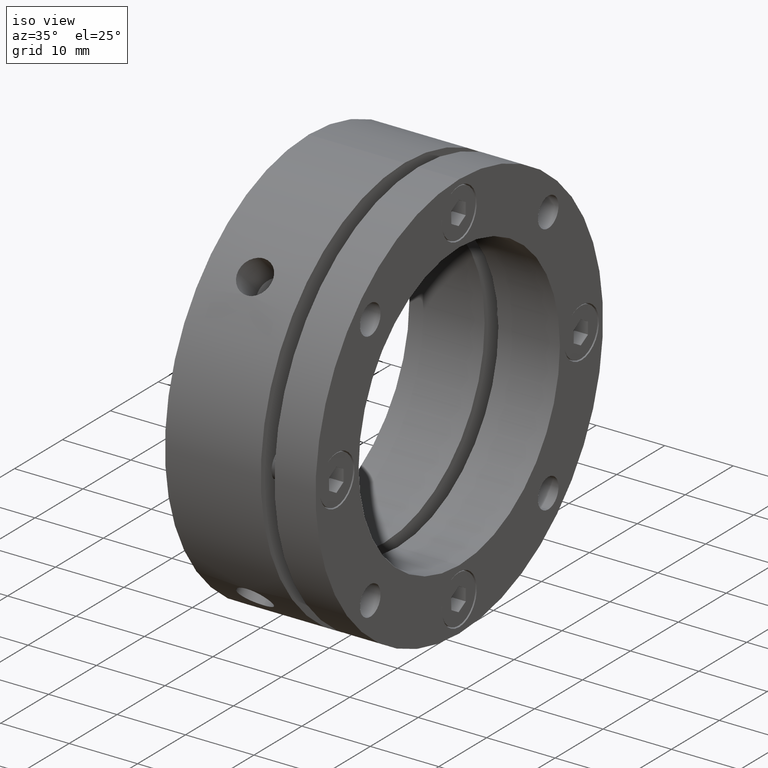
[diagram: clean part render]
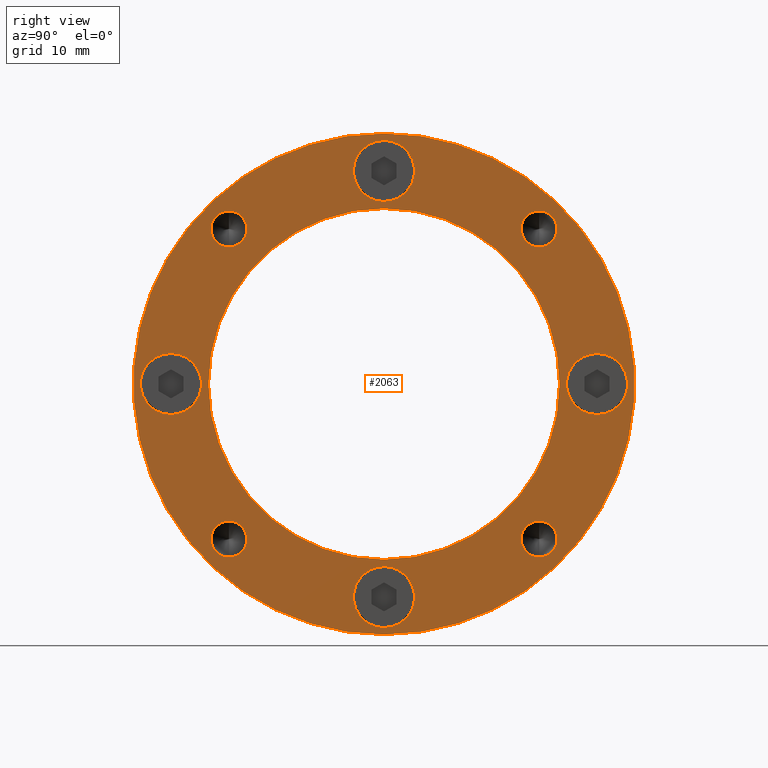
[diagram: tour spotlight — one face highlighted and labeled with its STEP entity id]
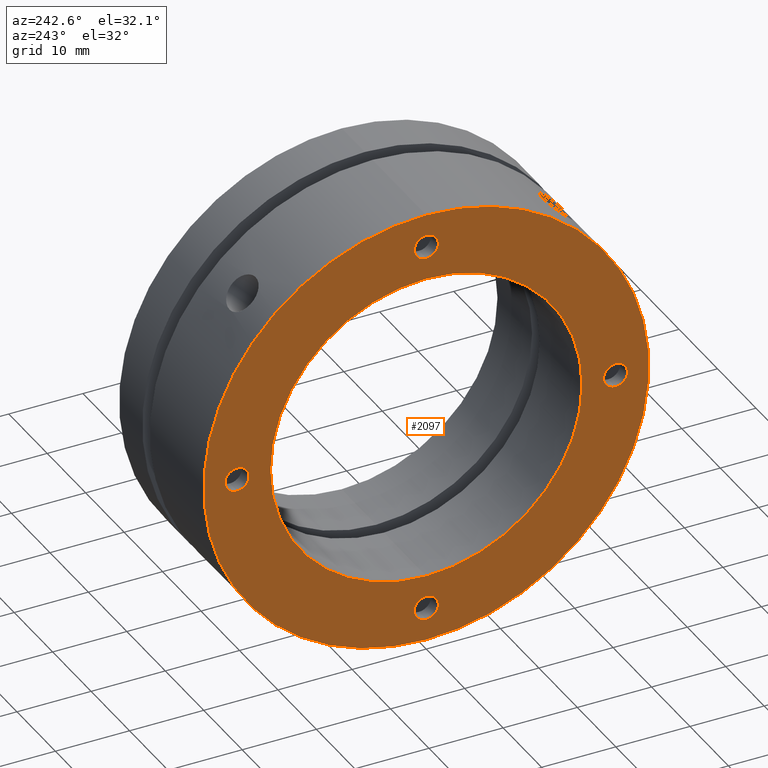
[diagram: tour spotlight — one face highlighted and labeled with its STEP entity id]
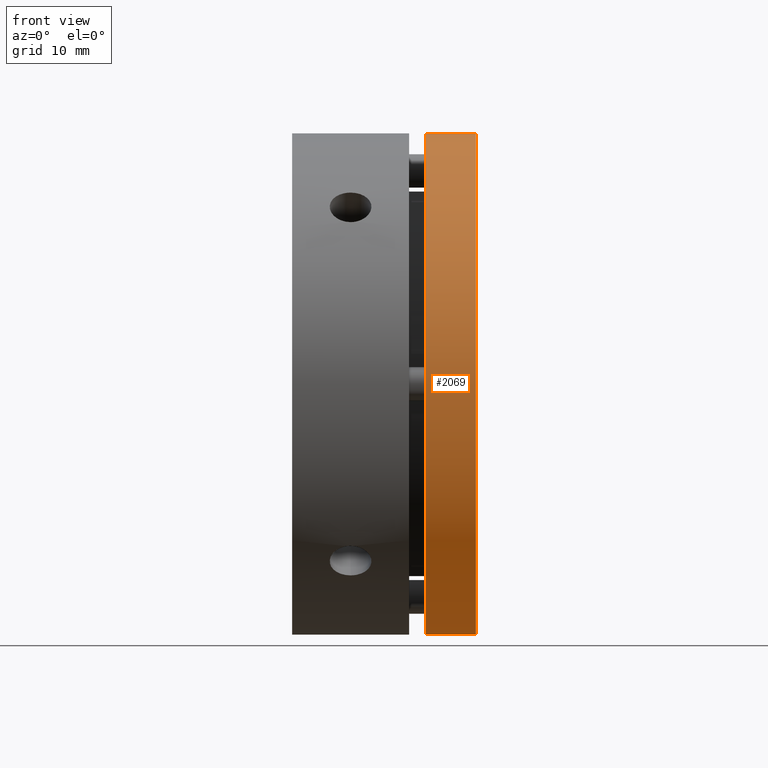
[diagram: tour spotlight — one face highlighted and labeled with its STEP entity id]
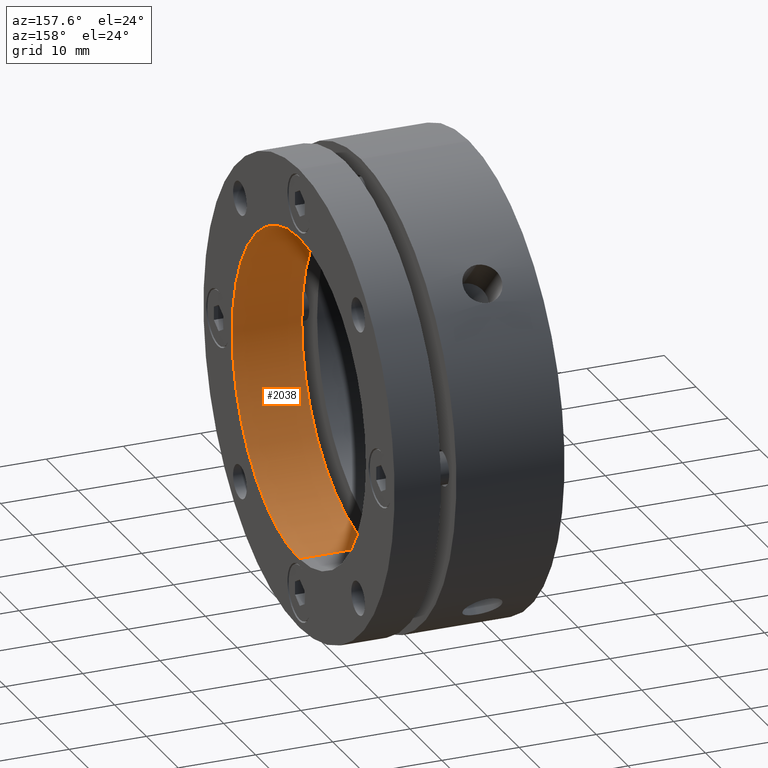
[diagram: tour spotlight — one face highlighted and labeled with its STEP entity id]
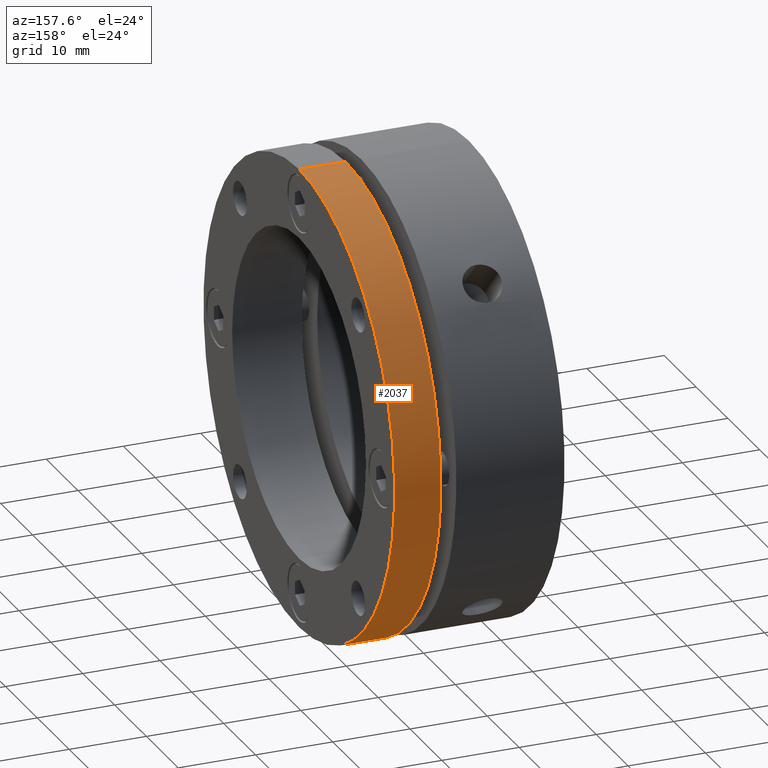
[diagram: tour spotlight — one face highlighted and labeled with its STEP entity id]
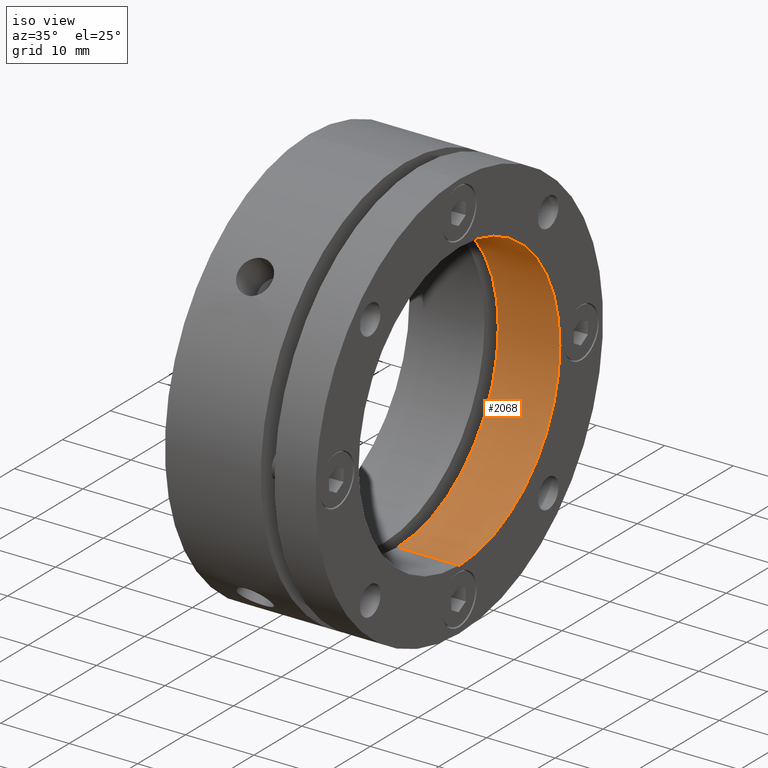
[diagram: tour spotlight — one face highlighted and labeled with its STEP entity id]
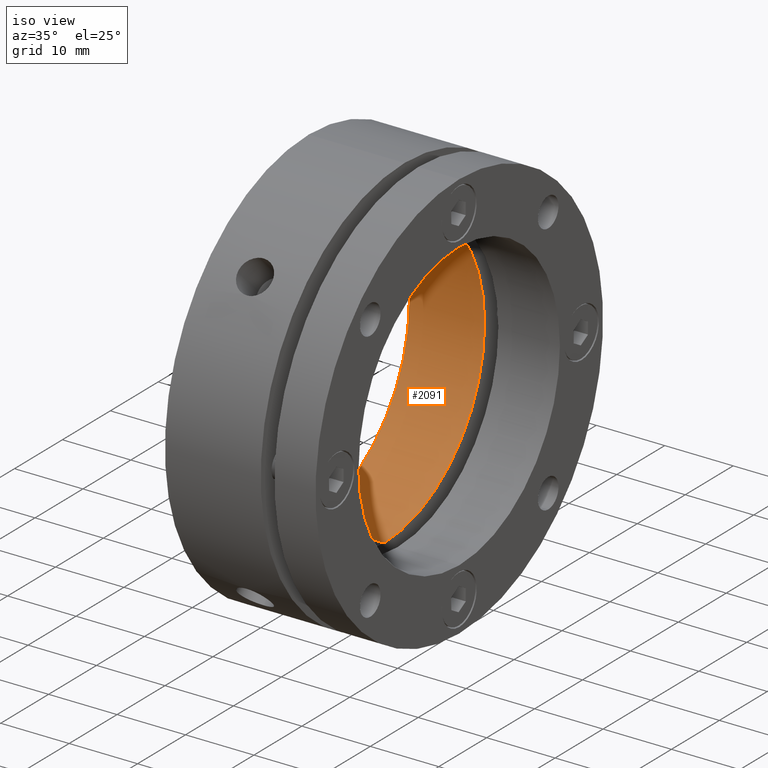
[diagram: tour spotlight — one face highlighted and labeled with its STEP entity id]
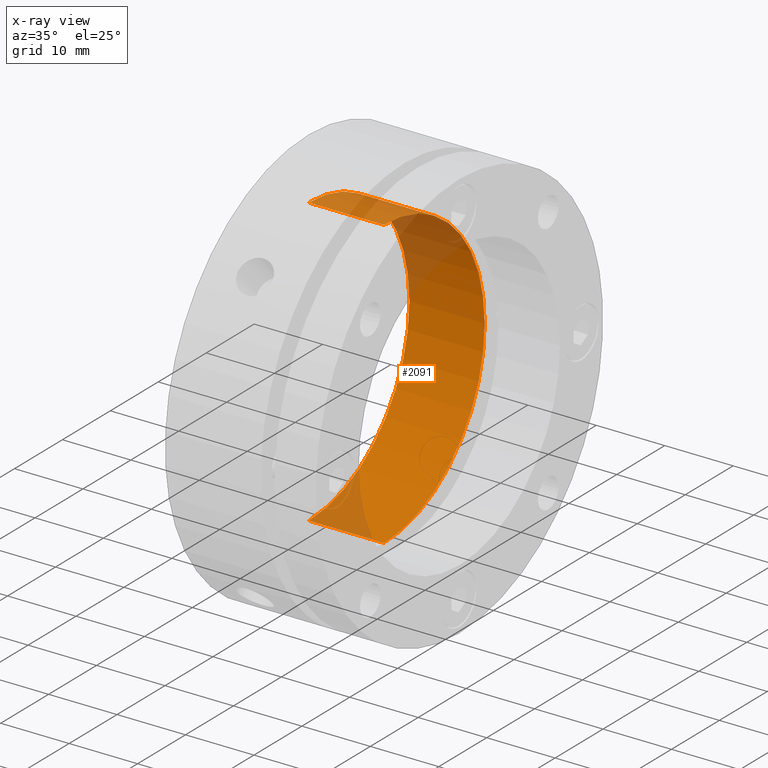
[diagram: x-ray of the same camera — body ghosted, this tour face saturated]
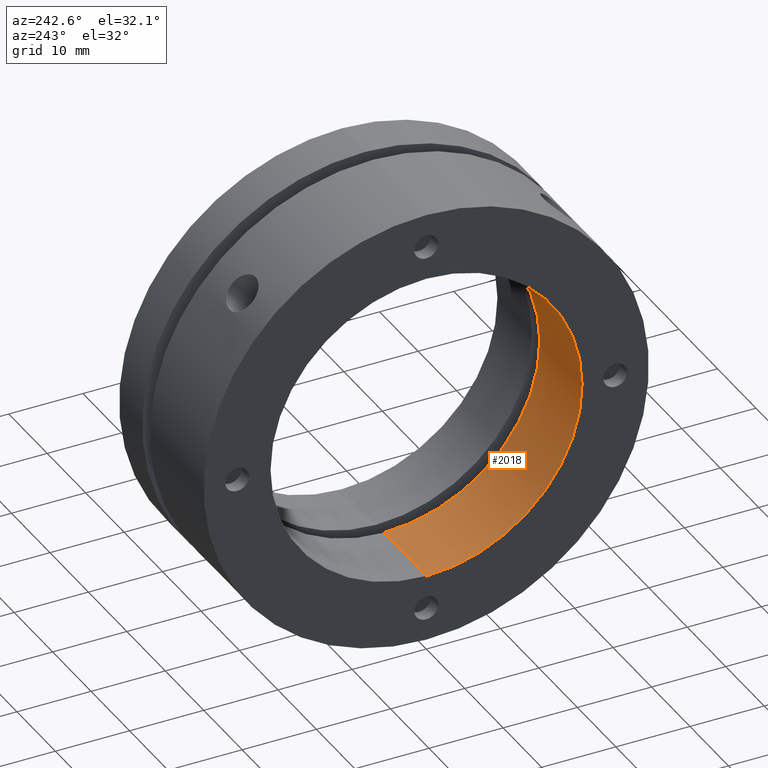
[diagram: tour spotlight — one face highlighted and labeled with its STEP entity id]
A machine part: a face-by-face anatomy tour. The part has 142 B-rep faces; the first image is the clean iso view, then the 8 largest visible faces are spotlighted one at a time (largest first), each with its STEP entity span.

Face 1 — right view, entity #2063. In plain terms, the highlighted planar face has unit normal (1, 0, 0).
Definition (entity closure, byte-faithful):
#32 = AXIS2_PLACEMENT_3D ( 'NONE', #3362, #3358, #3364 ) ;
#458 = CARTESIAN_POINT ( 'NONE',  ( 21.99999999999999300, -18.56155300614687700, 18.56155300614687700 ) ) ;
#459 = DIRECTION ( 'NONE',  ( -1.000000000000000000, -0.0000000000000000000, -0.0000000000000000000 ) ) ;
#460 = DIRECTION ( 'NONE',  ( 0.0000000000000000000, 0.0000000000000000000, -1.000000000000000000 ) ) ;
#471 = CARTESIAN_POINT ( 'NONE',  ( 21.99999999999999300, 18.56155300614687300, -18.56155300614688400 ) ) ;
#472 = DIRECTION ( 'NONE',  ( -1.000000000000000000, -0.0000000000000000000, -0.0000000000000000000 ) ) ;
#473 = DIRECTION ( 'NONE',  ( 0.0000000000000000000, 0.0000000000000000000, -1.000000000000000000 ) ) ;
#604 = CARTESIAN_POINT ( 'NONE',  ( 21.99999999999999300, 0.0000000000000000000, 0.0000000000000000000 ) ) ;
#605 = DIRECTION ( 'NONE',  ( -1.000000000000000000, -0.0000000000000000000, -0.0000000000000000000 ) ) ;
#606 = DIRECTION ( 'NONE',  ( 0.0000000000000000000, 0.0000000000000000000, -1.000000000000000000 ) ) ;
#619 = CARTESIAN_POINT ( 'NONE',  ( 21.99999999999999300, 18.56155300614688400, 18.56155300614687300 ) ) ;
#620 = DIRECTION ( 'NONE',  ( -1.000000000000000000, -0.0000000000000000000, -0.0000000000000000000 ) ) ;
#621 = DIRECTION ( 'NONE',  ( 0.0000000000000000000, 0.0000000000000000000, -1.000000000000000000 ) ) ;
#625 = CARTESIAN_POINT ( 'NONE',  ( 21.99999999999999300, 25.50000000000001100, -4.684274000000000000E-015 ) ) ;
#626 = DIRECTION ( 'NONE',  ( -1.000000000000000000, -0.0000000000000000000, -0.0000000000000000000 ) ) ;
#627 = DIRECTION ( 'NONE',  ( 0.0000000000000000000, 0.0000000000000000000, -1.000000000000000000 ) ) ;
#628 = CARTESIAN_POINT ( 'NONE',  ( 21.99999999999999300, 0.0000000000000000000, 0.0000000000000000000 ) ) ;
#629 = DIRECTION ( 'NONE',  ( -1.000000000000000000, -0.0000000000000000000, -0.0000000000000000000 ) ) ;
#630 = DIRECTION ( 'NONE',  ( 0.0000000000000000000, 0.0000000000000000000, -1.000000000000000000 ) ) ;
#634 = CARTESIAN_POINT ( 'NONE',  ( 21.99999999999999300, 18.56155300614687300, -18.56155300614688400 ) ) ;
#635 = DIRECTION ( 'NONE',  ( -1.000000000000000000, -0.0000000000000000000, -0.0000000000000000000 ) ) ;
#636 = DIRECTION ( 'NONE',  ( 0.0000000000000000000, 0.0000000000000000000, -1.000000000000000000 ) ) ;
#639 = CARTESIAN_POINT ( 'NONE',  ( 21.99999999999999300, 25.50000000000001100, -4.684274000000000000E-015 ) ) ;
#640 = DIRECTION ( 'NONE',  ( -1.000000000000000000, -0.0000000000000000000, -0.0000000000000000000 ) ) ;
#641 = DIRECTION ( 'NONE',  ( 0.0000000000000000000, 0.0000000000000000000, -1.000000000000000000 ) ) ;
#643 = CARTESIAN_POINT ( 'NONE',  ( 21.99999999999999300, 18.56155300614688400, 18.56155300614687300 ) ) ;
#644 = DIRECTION ( 'NONE',  ( -1.000000000000000000, -0.0000000000000000000, -0.0000000000000000000 ) ) ;
#645 = DIRECTION ( 'NONE',  ( 0.0000000000000000000, 0.0000000000000000000, -1.000000000000000000 ) ) ;
#647 = CARTESIAN_POINT ( 'NONE',  ( 21.99999999999999300, -3.122849000000000000E-015, -25.50000000000001100 ) ) ;
#648 = DIRECTION ( 'NONE',  ( -1.000000000000000000, -0.0000000000000000000, -0.0000000000000000000 ) ) ;
#649 = DIRECTION ( 'NONE',  ( 0.0000000000000000000, 0.0000000000000000000, -1.000000000000000000 ) ) ;
#652 = CARTESIAN_POINT ( 'NONE',  ( 21.99999999999999300, -25.50000000000001100, 1.561424999999999900E-015 ) ) ;
#653 = DIRECTION ( 'NONE',  ( -1.000000000000000000, -0.0000000000000000000, -0.0000000000000000000 ) ) ;
#654 = DIRECTION ( 'NONE',  ( 0.0000000000000000000, 0.0000000000000000000, -1.000000000000000000 ) ) ;
#672 = CARTESIAN_POINT ( 'NONE',  ( 21.99999999999999300, 0.0000000000000000000, 0.0000000000000000000 ) ) ;
#673 = DIRECTION ( 'NONE',  ( -1.000000000000000000, -0.0000000000000000000, -0.0000000000000000000 ) ) ;
#674 = DIRECTION ( 'NONE',  ( 0.0000000000000000000, 0.0000000000000000000, -1.000000000000000000 ) ) ;
#749 = CARTESIAN_POINT ( 'NONE',  ( 21.99999999999999300, 0.0000000000000000000, 0.0000000000000000000 ) ) ;
#750 = DIRECTION ( 'NONE',  ( -1.000000000000000000, -0.0000000000000000000, -0.0000000000000000000 ) ) ;
#751 = DIRECTION ( 'NONE',  ( 0.0000000000000000000, 0.0000000000000000000, -1.000000000000000000 ) ) ;
#761 = CARTESIAN_POINT ( 'NONE',  ( 21.99999999999999300, 0.0000000000000000000, 25.50000000000001100 ) ) ;
#762 = DIRECTION ( 'NONE',  ( -1.000000000000000000, -0.0000000000000000000, -0.0000000000000000000 ) ) ;
#763 = DIRECTION ( 'NONE',  ( 0.0000000000000000000, 0.0000000000000000000, -1.000000000000000000 ) ) ;
#921 = EDGE_CURVE ( 'NONE', #1207, #1208, #1984, .T. ) ;
#922 = EDGE_CURVE ( 'NONE', #1203, #1204, #1982, .T. ) ;
#925 = EDGE_CURVE ( 'NONE', #1198, #1200, #1980, .T. ) ;
#935 = EDGE_CURVE ( 'NONE', #1190, #1191, #1966, .T. ) ;
#936 = EDGE_CURVE ( 'NONE', #1187, #1186, #1964, .T. ) ;
#939 = EDGE_CURVE ( 'NONE', #1186, #1187, #1961, .T. ) ;
#1079 = EDGE_LOOP ( 'NONE', ( #1488, #1479 ) ) ;
#1080 = EDGE_LOOP ( 'NONE', ( #1455, #1611 ) ) ;
#1081 = EDGE_LOOP ( 'NONE', ( #1402, #1466 ) ) ;
#1082 = EDGE_LOOP ( 'NONE', ( #1366, #1608 ) ) ;
#1083 = EDGE_LOOP ( 'NONE', ( #1444, #1606 ) ) ;
#1084 = EDGE_LOOP ( 'NONE', ( #1372, #1368 ) ) ;
#1085 = EDGE_LOOP ( 'NONE', ( #1371, #1607 ) ) ;
#1086 = EDGE_LOOP ( 'NONE', ( #1471, #1374 ) ) ;
#1096 = EDGE_LOOP ( 'NONE', ( #1367, #1451 ) ) ;
#1148 = EDGE_LOOP ( 'NONE', ( #1441, #1618 ) ) ;
#1178 = VERTEX_POINT ( 'NONE', #2562 ) ;
#1179 = VERTEX_POINT ( 'NONE', #2563 ) ;
#1182 = VERTEX_POINT ( 'NONE', #2567 ) ;
#1183 = VERTEX_POINT ( 'NONE', #2568 ) ;
#1186 = VERTEX_POINT ( 'NONE', #2572 ) ;
#1187 = VERTEX_POINT ( 'NONE', #2573 ) ;
#1190 = VERTEX_POINT ( 'NONE', #2579 ) ;
#1191 = VERTEX_POINT ( 'NONE', #2580 ) ;
#1194 = VERTEX_POINT ( 'NONE', #2586 ) ;
#1195 = VERTEX_POINT ( 'NONE', #2587 ) ;
#1198 = VERTEX_POINT ( 'NONE', #2593 ) ;
#1200 = VERTEX_POINT ( 'NONE', #2596 ) ;
#1203 = VERTEX_POINT ( 'NONE', #2601 ) ;
#1204 = VERTEX_POINT ( 'NONE', #2603 ) ;
#1207 = VERTEX_POINT ( 'NONE', #2608 ) ;
#1208 = VERTEX_POINT ( 'NONE', #2610 ) ;
#1211 = VERTEX_POINT ( 'NONE', #2615 ) ;
#1212 = VERTEX_POINT ( 'NONE', #2617 ) ;
#1214 = VERTEX_POINT ( 'NONE', #2621 ) ;
#1216 = VERTEX_POINT ( 'NONE', #2624 ) ;
#1304 = AXIS2_PLACEMENT_3D ( 'NONE', #458, #459, #460 ) ;
#1314 = AXIS2_PLACEMENT_3D ( 'NONE', #471, #472, #473 ) ;
#1366 = ORIENTED_EDGE ( 'NONE', *, *, #936, .T. ) ;
#1367 = ORIENTED_EDGE ( 'NONE', *, *, #2521, .T. ) ;
#1368 = ORIENTED_EDGE ( 'NONE', *, *, #925, .T. ) ;
#1371 = ORIENTED_EDGE ( 'NONE', *, *, #2623, .T. ) ;
#1372 = ORIENTED_EDGE ( 'NONE', *, *, #2630, .T. ) ;
#1374 = ORIENTED_EDGE ( 'NONE', *, *, #921, .T. ) ;
#1402 = ORIENTED_EDGE ( 'NONE', *, *, #2532, .T. ) ;
#1441 = ORIENTED_EDGE ( 'NONE', *, *, #3507, .T. ) ;
#1444 = ORIENTED_EDGE ( 'NONE', *, *, #2634, .T. ) ;
#1451 = ORIENTED_EDGE ( 'NONE', *, *, #935, .T. ) ;
#1455 = ORIENTED_EDGE ( 'NONE', *, *, #2625, .T. ) ;
#1466 = ORIENTED_EDGE ( 'NONE', *, *, #2620, .T. ) ;
#1471 = ORIENTED_EDGE ( 'NONE', *, *, #3513, .T. ) ;
#1479 = ORIENTED_EDGE ( 'NONE', *, *, #3477, .F. ) ;
#1488 = ORIENTED_EDGE ( 'NONE', *, *, #2597, .F. ) ;
#1606 = ORIENTED_EDGE ( 'NONE', *, *, #922, .T. ) ;
#1607 = ORIENTED_EDGE ( 'NONE', *, *, #2613, .T. ) ;
#1608 = ORIENTED_EDGE ( 'NONE', *, *, #939, .T. ) ;
#1611 = ORIENTED_EDGE ( 'NONE', *, *, #2609, .T. ) ;
#1618 = ORIENTED_EDGE ( 'NONE', *, *, #2616, .T. ) ;
#1961 = CIRCLE ( 'NONE', #3458, 2.149999999999999000 ) ;
#1964 = CIRCLE ( 'NONE', #3460, 2.149999999999999000 ) ;
#1966 = CIRCLE ( 'NONE', #3461, 2.149999999999999000 ) ;
#1980 = CIRCLE ( 'NONE', #3467, 3.650000000000000400 ) ;
#1982 = CIRCLE ( 'NONE', #3470, 3.649999999999999900 ) ;
#1984 = CIRCLE ( 'NONE', #3471, 3.650000000000000400 ) ;
#2063 = ADVANCED_FACE ( 'NONE', ( #2171, #2179, #2175, #2173, #2177, #2180, #2181, #2182, #2183, #2184 ), #3360, .T. ) ;
#2171 = FACE_BOUND ( 'NONE', #1148, .T. ) ;
#2173 = FACE_BOUND ( 'NONE', #1084, .T. ) ;
#2175 = FACE_BOUND ( 'NONE', #1083, .T. ) ;
#2177 = FACE_BOUND ( 'NONE', #1085, .T. ) ;
#2179 = FACE_BOUND ( 'NONE', #1086, .T. ) ;
#2180 = FACE_BOUND ( 'NONE', #1096, .T. ) ;
#2181 = FACE_BOUND ( 'NONE', #1082, .T. ) ;
#2182 = FACE_BOUND ( 'NONE', #1081, .T. ) ;
#2183 = FACE_BOUND ( 'NONE', #1080, .T. ) ;
#2184 = FACE_OUTER_BOUND ( 'NONE', #1079, .T. ) ;
#2292 = CIRCLE ( 'NONE', #1304, 2.149999999999999000 ) ;
#2300 = CIRCLE ( 'NONE', #1314, 2.149999999999999000 ) ;
#2325 = CIRCLE ( 'NONE', #2649, 30.00000000000000000 ) ;
#2328 = CIRCLE ( 'NONE', #2661, 2.149999999999999000 ) ;
#2331 = CIRCLE ( 'NONE', #2668, 21.00000000000000000 ) ;
#2332 = CIRCLE ( 'NONE', #2666, 3.649999999999999900 ) ;
#2334 = CIRCLE ( 'NONE', #2673, 2.149999999999999000 ) ;
#2335 = CIRCLE ( 'NONE', #2680, 3.650000000000000400 ) ;
#2336 = CIRCLE ( 'NONE', #2675, 3.649999999999999900 ) ;
#2337 = CIRCLE ( 'NONE', #2677, 2.149999999999999000 ) ;
#2339 = CIRCLE ( 'NONE', #2682, 3.649999999999999900 ) ;
#2354 = CIRCLE ( 'NONE', #2691, 30.00000000000000000 ) ;
#2399 = CIRCLE ( 'NONE', #2726, 21.00000000000000000 ) ;
#2408 = CIRCLE ( 'NONE', #2731, 3.650000000000000400 ) ;
#2427 = CARTESIAN_POINT ( 'NONE',  ( 21.99999999999999300, 0.0000000000000000000, 25.50000000000001100 ) ) ;
#2428 = DIRECTION ( 'NONE',  ( -1.000000000000000000, -0.0000000000000000000, -0.0000000000000000000 ) ) ;
#2429 = DIRECTION ( 'NONE',  ( 0.0000000000000000000, 0.0000000000000000000, -1.000000000000000000 ) ) ;
#2430 = CARTESIAN_POINT ( 'NONE',  ( 21.99999999999999300, -25.50000000000001100, 1.561424999999999900E-015 ) ) ;
#2431 = DIRECTION ( 'NONE',  ( -1.000000000000000000, -0.0000000000000000000, -0.0000000000000000000 ) ) ;
#2432 = DIRECTION ( 'NONE',  ( 0.0000000000000000000, 0.0000000000000000000, -1.000000000000000000 ) ) ;
#2440 = CARTESIAN_POINT ( 'NONE',  ( 21.99999999999999300, -3.122849000000000000E-015, -25.50000000000001100 ) ) ;
#2441 = DIRECTION ( 'NONE',  ( -1.000000000000000000, -0.0000000000000000000, -0.0000000000000000000 ) ) ;
#2442 = DIRECTION ( 'NONE',  ( 0.0000000000000000000, 0.0000000000000000000, -1.000000000000000000 ) ) ;
#2466 = CARTESIAN_POINT ( 'NONE',  ( 21.99999999999999300, -18.56155300614687700, 18.56155300614687700 ) ) ;
#2467 = DIRECTION ( 'NONE',  ( -1.000000000000000000, -0.0000000000000000000, -0.0000000000000000000 ) ) ;
#2468 = DIRECTION ( 'NONE',  ( 0.0000000000000000000, 0.0000000000000000000, -1.000000000000000000 ) ) ;
#2469 = CARTESIAN_POINT ( 'NONE',  ( 21.99999999999999300, -18.56155300614688000, -18.56155300614687300 ) ) ;
#2470 = DIRECTION ( 'NONE',  ( -1.000000000000000000, -0.0000000000000000000, -0.0000000000000000000 ) ) ;
#2471 = DIRECTION ( 'NONE',  ( 0.0000000000000000000, 0.0000000000000000000, -1.000000000000000000 ) ) ;
#2478 = CARTESIAN_POINT ( 'NONE',  ( 21.99999999999999300, -18.56155300614688000, -18.56155300614687300 ) ) ;
#2479 = DIRECTION ( 'NONE',  ( -1.000000000000000000, -0.0000000000000000000, -0.0000000000000000000 ) ) ;
#2480 = DIRECTION ( 'NONE',  ( 0.0000000000000000000, 0.0000000000000000000, -1.000000000000000000 ) ) ;
#2521 = EDGE_CURVE ( 'NONE', #1191, #1190, #2292, .T. ) ;
#2532 = EDGE_CURVE ( 'NONE', #1183, #1182, #2300, .T. ) ;
#2562 = CARTESIAN_POINT ( 'NONE',  ( 21.99999999999999300, 18.56155300614688400, 20.71155300614687200 ) ) ;
#2563 = CARTESIAN_POINT ( 'NONE',  ( 21.99999999999999300, 18.56155300614688400, 16.41155300614687500 ) ) ;
#2567 = CARTESIAN_POINT ( 'NONE',  ( 21.99999999999999300, 18.56155300614687300, -16.41155300614688500 ) ) ;
#2568 = CARTESIAN_POINT ( 'NONE',  ( 21.99999999999999300, 18.56155300614687300, -20.71155300614688200 ) ) ;
#2572 = CARTESIAN_POINT ( 'NONE',  ( 21.99999999999999300, -18.56155300614688000, -16.41155300614687500 ) ) ;
#2573 = CARTESIAN_POINT ( 'NONE',  ( 21.99999999999999300, -18.56155300614688000, -20.71155300614687200 ) ) ;
#2579 = CARTESIAN_POINT ( 'NONE',  ( 21.99999999999999300, -18.56155300614687700, 20.71155300614687500 ) ) ;
#2580 = CARTESIAN_POINT ( 'NONE',  ( 21.99999999999999300, -18.56155300614687700, 16.41155300614687800 ) ) ;
#2586 = CARTESIAN_POINT ( 'NONE',  ( 21.99999999999999300, 25.50000000000001100, 3.649999999999995500 ) ) ;
#2587 = CARTESIAN_POINT ( 'NONE',  ( 21.99999999999999300, 25.50000000000001100, -3.650000000000004800 ) ) ;
#2593 = CARTESIAN_POINT ( 'NONE',  ( 21.99999999999999300, -2.675852918311216200E-015, -21.85000000000001200 ) ) ;
#2596 = CARTESIAN_POINT ( 'NONE',  ( 21.99999999999999300, -3.122849000000000000E-015, -29.15000000000001300 ) ) ;
#2597 = EDGE_CURVE ( 'NONE', #1214, #1216, #2325, .T. ) ;
#2601 = CARTESIAN_POINT ( 'NONE',  ( 21.99999999999999300, -25.50000000000001100, 3.650000000000001700 ) ) ;
#2603 = CARTESIAN_POINT ( 'NONE',  ( 21.99999999999999300, -25.50000000000001100, -3.649999999999998100 ) ) ;
#2609 = EDGE_CURVE ( 'NONE', #1178, #1179, #2328, .T. ) ;
#2608 = CARTESIAN_POINT ( 'NONE',  ( 21.99999999999999300, 4.469960816887838400E-016, 29.15000000000001300 ) ) ;
#2610 = CARTESIAN_POINT ( 'NONE',  ( 21.99999999999999300, 0.0000000000000000000, 21.85000000000001200 ) ) ;
#2613 = EDGE_CURVE ( 'NONE', #1194, #1195, #2332, .T. ) ;
#2616 = EDGE_CURVE ( 'NONE', #1211, #1212, #2331, .T. ) ;
#2615 = CARTESIAN_POINT ( 'NONE',  ( 21.99999999999999300, 2.571758278209441700E-015, 21.00000000000000000 ) ) ;
#2617 = CARTESIAN_POINT ( 'NONE',  ( 21.99999999999999300, 0.0000000000000000000, -21.00000000000000000 ) ) ;
#2620 = EDGE_CURVE ( 'NONE', #1182, #1183, #2334, .T. ) ;
#2621 = CARTESIAN_POINT ( 'NONE',  ( 21.99999999999999300, 0.0000000000000000000, -30.00000000000000000 ) ) ;
#2623 = EDGE_CURVE ( 'NONE', #1195, #1194, #2336, .T. ) ;
#2624 = CARTESIAN_POINT ( 'NONE',  ( 21.99999999999999300, 3.673940397442059200E-015, 30.00000000000000000 ) ) ;
#2625 = EDGE_CURVE ( 'NONE', #1179, #1178, #2337, .T. ) ;
#2630 = EDGE_CURVE ( 'NONE', #1200, #1198, #2335, .T. ) ;
#2634 = EDGE_CURVE ( 'NONE', #1204, #1203, #2339, .T. ) ;
#2649 = AXIS2_PLACEMENT_3D ( 'NONE', #604, #605, #606 ) ;
#2661 = AXIS2_PLACEMENT_3D ( 'NONE', #619, #620, #621 ) ;
#2666 = AXIS2_PLACEMENT_3D ( 'NONE', #625, #626, #627 ) ;
#2668 = AXIS2_PLACEMENT_3D ( 'NONE', #628, #629, #630 ) ;
#2673 = AXIS2_PLACEMENT_3D ( 'NONE', #634, #635, #636 ) ;
#2675 = AXIS2_PLACEMENT_3D ( 'NONE', #639, #640, #641 ) ;
#2677 = AXIS2_PLACEMENT_3D ( 'NONE', #643, #644, #645 ) ;
#2680 = AXIS2_PLACEMENT_3D ( 'NONE', #647, #648, #649 ) ;
#2682 = AXIS2_PLACEMENT_3D ( 'NONE', #652, #653, #654 ) ;
#2691 = AXIS2_PLACEMENT_3D ( 'NONE', #672, #673, #674 ) ;
#2726 = AXIS2_PLACEMENT_3D ( 'NONE', #749, #750, #751 ) ;
#2731 = AXIS2_PLACEMENT_3D ( 'NONE', #761, #762, #763 ) ;
#3358 = DIRECTION ( 'NONE',  ( 1.000000000000000000, -0.0000000000000000000, 0.0000000000000000000 ) ) ;
#3360 = PLANE ( 'NONE',  #32 ) ;
#3362 = CARTESIAN_POINT ( 'NONE',  ( 21.99999999999999300, 25.50000000000000400, 0.0000000000000000000 ) ) ;
#3364 = DIRECTION ( 'NONE',  ( 0.0000000000000000000, 0.0000000000000000000, -1.000000000000000000 ) ) ;
#3458 = AXIS2_PLACEMENT_3D ( 'NONE', #2478, #2479, #2480 ) ;
#3460 = AXIS2_PLACEMENT_3D ( 'NONE', #2469, #2470, #2471 ) ;
#3461 = AXIS2_PLACEMENT_3D ( 'NONE', #2466, #2467, #2468 ) ;
#3467 = AXIS2_PLACEMENT_3D ( 'NONE', #2440, #2441, #2442 ) ;
#3470 = AXIS2_PLACEMENT_3D ( 'NONE', #2430, #2431, #2432 ) ;
#3471 = AXIS2_PLACEMENT_3D ( 'NONE', #2427, #2428, #2429 ) ;
#3477 = EDGE_CURVE ( 'NONE', #1216, #1214, #2354, .T. ) ;
#3507 = EDGE_CURVE ( 'NONE', #1212, #1211, #2399, .T. ) ;
#3513 = EDGE_CURVE ( 'NONE', #1208, #1207, #2408, .T. ) ;

Face 2 — auxiliary view, entity #2097. In plain terms, the highlighted planar face has unit normal (-1, 0, 0).
Definition (entity closure, byte-faithful):
#255 = CIRCLE ( 'NONE', #3424, 1.621000000000000900 ) ;
#295 = CIRCLE ( 'NONE', #3435, 21.00000000000000000 ) ;
#431 = DIRECTION ( 'NONE',  ( -1.000000000000000000, 0.0000000000000000000, 0.0000000000000000000 ) ) ;
#433 = PLANE ( 'NONE',  #1309 ) ;
#435 = CARTESIAN_POINT ( 'NONE',  ( -7.208764000000000100E-015, 25.50000000000000400, 0.0000000000000000000 ) ) ;
#436 = DIRECTION ( 'NONE',  ( 0.0000000000000000000, 0.0000000000000000000, 1.000000000000000000 ) ) ;
#518 = CARTESIAN_POINT ( 'NONE',  ( -6.938893903907228400E-015, 25.50000000000001100, -4.684274000000000000E-015 ) ) ;
#519 = DIRECTION ( 'NONE',  ( 1.000000000000000000, -0.0000000000000000000, -0.0000000000000000000 ) ) ;
#520 = DIRECTION ( 'NONE',  ( 0.0000000000000000000, 0.0000000000000000000, 1.000000000000000000 ) ) ;
#521 = CARTESIAN_POINT ( 'NONE',  ( -6.938893903907228400E-015, -3.122849000000000000E-015, -25.50000000000001100 ) ) ;
#522 = DIRECTION ( 'NONE',  ( 1.000000000000000000, -0.0000000000000000000, -0.0000000000000000000 ) ) ;
#523 = DIRECTION ( 'NONE',  ( 0.0000000000000000000, 0.0000000000000000000, 1.000000000000000000 ) ) ;
#524 = CARTESIAN_POINT ( 'NONE',  ( -6.938893903907228400E-015, -25.50000000000001100, 1.561424999999999900E-015 ) ) ;
#525 = DIRECTION ( 'NONE',  ( 1.000000000000000000, -0.0000000000000000000, -0.0000000000000000000 ) ) ;
#526 = DIRECTION ( 'NONE',  ( 0.0000000000000000000, 0.0000000000000000000, 1.000000000000000000 ) ) ;
#527 = CARTESIAN_POINT ( 'NONE',  ( -6.938893903907228400E-015, 0.0000000000000000000, 25.50000000000001100 ) ) ;
#528 = DIRECTION ( 'NONE',  ( 1.000000000000000000, -0.0000000000000000000, -0.0000000000000000000 ) ) ;
#529 = DIRECTION ( 'NONE',  ( 0.0000000000000000000, 0.0000000000000000000, 1.000000000000000000 ) ) ;
#531 = CARTESIAN_POINT ( 'NONE',  ( -5.204170427930421300E-015, 0.0000000000000000000, 0.0000000000000000000 ) ) ;
#532 = DIRECTION ( 'NONE',  ( 1.000000000000000000, 0.0000000000000000000, 0.0000000000000000000 ) ) ;
#533 = DIRECTION ( 'NONE',  ( 0.0000000000000000000, 0.0000000000000000000, -1.000000000000000000 ) ) ;
#607 = CARTESIAN_POINT ( 'NONE',  ( -8.673617379884035500E-015, 0.0000000000000000000, 0.0000000000000000000 ) ) ;
#608 = DIRECTION ( 'NONE',  ( 1.000000000000000000, 0.0000000000000000000, 0.0000000000000000000 ) ) ;
#609 = DIRECTION ( 'NONE',  ( 0.0000000000000000000, 0.0000000000000000000, -1.000000000000000000 ) ) ;
#1039 = VERTEX_POINT ( 'NONE', #2524 ) ;
#1046 = EDGE_LOOP ( 'NONE', ( #1561, #1528 ) ) ;
#1115 = VERTEX_POINT ( 'NONE', #2536 ) ;
#1122 = VERTEX_POINT ( 'NONE', #2522 ) ;
#1130 = VERTEX_POINT ( 'NONE', #2542 ) ;
#1142 = VERTEX_POINT ( 'NONE', #2544 ) ;
#1143 = VERTEX_POINT ( 'NONE', #2546 ) ;
#1199 = VERTEX_POINT ( 'NONE', #2594 ) ;
#1215 = VERTEX_POINT ( 'NONE', #2622 ) ;
#1246 = VERTEX_POINT ( 'NONE', #2676 ) ;
#1266 = VERTEX_POINT ( 'NONE', #2711 ) ;
#1309 = AXIS2_PLACEMENT_3D ( 'NONE', #435, #431, #436 ) ;
#1329 = AXIS2_PLACEMENT_3D ( 'NONE', #518, #519, #520 ) ;
#1409 = ORIENTED_EDGE ( 'NONE', *, *, #1892, .T. ) ;
#1456 = VERTEX_POINT ( 'NONE', #2735 ) ;
#1460 = VERTEX_POINT ( 'NONE', #2734 ) ;
#1474 = ORIENTED_EDGE ( 'NONE', *, *, #2588, .T. ) ;
#1478 = ORIENTED_EDGE ( 'NONE', *, *, #2578, .T. ) ;
#1517 = ORIENTED_EDGE ( 'NONE', *, *, #2585, .T. ) ;
#1524 = ORIENTED_EDGE ( 'NONE', *, *, #1899, .T. ) ;
#1528 = ORIENTED_EDGE ( 'NONE', *, *, #2581, .T. ) ;
#1533 = ORIENTED_EDGE ( 'NONE', *, *, #1898, .F. ) ;
#1534 = ORIENTED_EDGE ( 'NONE', *, *, #2599, .F. ) ;
#1539 = ORIENTED_EDGE ( 'NONE', *, *, #1896, .T. ) ;
#1540 = ORIENTED_EDGE ( 'NONE', *, *, #2583, .T. ) ;
#1555 = ORIENTED_EDGE ( 'NONE', *, *, #1658, .T. ) ;
#1561 = ORIENTED_EDGE ( 'NONE', *, *, #1889, .T. ) ;
#1658 = EDGE_CURVE ( 'NONE', #1039, #1142, #295, .T. ) ;
#1889 = EDGE_CURVE ( 'NONE', #1115, #1122, #255, .T. ) ;
#1892 = EDGE_CURVE ( 'NONE', #1130, #1266, #3541, .T. ) ;
#1896 = EDGE_CURVE ( 'NONE', #1215, #1246, #3537, .T. ) ;
#1898 = EDGE_CURVE ( 'NONE', #1460, #1456, #3538, .T. ) ;
#1899 = EDGE_CURVE ( 'NONE', #1199, #1143, #3542, .T. ) ;
#1932 = EDGE_LOOP ( 'NONE', ( #1409, #1478 ) ) ;
#1933 = EDGE_LOOP ( 'NONE', ( #1533, #1534 ) ) ;
#1989 = EDGE_LOOP ( 'NONE', ( #1474, #1555 ) ) ;
#1990 = EDGE_LOOP ( 'NONE', ( #1539, #1540 ) ) ;
#1992 = EDGE_LOOP ( 'NONE', ( #1524, #1517 ) ) ;
#2097 = ADVANCED_FACE ( 'NONE', ( #2263, #2271, #2267, #2265, #2269, #2272 ), #433, .T. ) ;
#2263 = FACE_BOUND ( 'NONE', #1989, .T. ) ;
#2265 = FACE_BOUND ( 'NONE', #1046, .T. ) ;
#2267 = FACE_BOUND ( 'NONE', #1990, .T. ) ;
#2269 = FACE_BOUND ( 'NONE', #1932, .T. ) ;
#2271 = FACE_BOUND ( 'NONE', #1992, .T. ) ;
#2272 = FACE_OUTER_BOUND ( 'NONE', #1933, .T. ) ;
#2319 = CIRCLE ( 'NONE', #1329, 1.621000000000000000 ) ;
#2320 = CIRCLE ( 'NONE', #2638, 1.621000000000000900 ) ;
#2321 = CIRCLE ( 'NONE', #2640, 1.621000000000000000 ) ;
#2322 = CIRCLE ( 'NONE', #2642, 1.621000000000000900 ) ;
#2323 = CIRCLE ( 'NONE', #2645, 21.00000000000000000 ) ;
#2326 = CIRCLE ( 'NONE', #2652, 30.00000000000000000 ) ;
#2522 = CARTESIAN_POINT ( 'NONE',  ( -6.938893903907228400E-015, -2.924333753858213800E-015, -27.12100000000001300 ) ) ;
#2524 = CARTESIAN_POINT ( 'NONE',  ( -5.204170427930421300E-015, 2.571758278209441700E-015, 21.00000000000000000 ) ) ;
#2536 = CARTESIAN_POINT ( 'NONE',  ( -6.938893903907228400E-015, -3.122849000000000000E-015, -23.87900000000001200 ) ) ;
#2542 = CARTESIAN_POINT ( 'NONE',  ( -6.938893903907228400E-015, 25.50000000000001100, 1.620999999999995300 ) ) ;
#2544 = CARTESIAN_POINT ( 'NONE',  ( -5.204170427930421300E-015, 0.0000000000000000000, -21.00000000000000000 ) ) ;
#2546 = CARTESIAN_POINT ( 'NONE',  ( -6.938893903907228400E-015, 1.985152461417858200E-016, 23.87900000000001200 ) ) ;
#2578 = EDGE_CURVE ( 'NONE', #1266, #1130, #2319, .T. ) ;
#2581 = EDGE_CURVE ( 'NONE', #1122, #1115, #2320, .T. ) ;
#2583 = EDGE_CURVE ( 'NONE', #1246, #1215, #2321, .T. ) ;
#2585 = EDGE_CURVE ( 'NONE', #1143, #1199, #2322, .T. ) ;
#2588 = EDGE_CURVE ( 'NONE', #1142, #1039, #2323, .T. ) ;
#2594 = CARTESIAN_POINT ( 'NONE',  ( -6.938893903907228400E-015, 0.0000000000000000000, 27.12100000000001300 ) ) ;
#2599 = EDGE_CURVE ( 'NONE', #1456, #1460, #2326, .T. ) ;
#2622 = CARTESIAN_POINT ( 'NONE',  ( -6.938893903907228400E-015, -25.50000000000001100, 1.621000000000001600 ) ) ;
#2638 = AXIS2_PLACEMENT_3D ( 'NONE', #521, #522, #523 ) ;
#2640 = AXIS2_PLACEMENT_3D ( 'NONE', #524, #525, #526 ) ;
#2642 = AXIS2_PLACEMENT_3D ( 'NONE', #527, #528, #529 ) ;
#2645 = AXIS2_PLACEMENT_3D ( 'NONE', #531, #532, #533 ) ;
#2652 = AXIS2_PLACEMENT_3D ( 'NONE', #607, #608, #609 ) ;
#2676 = CARTESIAN_POINT ( 'NONE',  ( -6.938893903907228400E-015, -25.50000000000001100, -1.620999999999998400 ) ) ;
#2711 = CARTESIAN_POINT ( 'NONE',  ( -6.938893903907228400E-015, 25.50000000000001100, -1.621000000000004900 ) ) ;
#2734 = CARTESIAN_POINT ( 'NONE',  ( -8.673617379884035500E-015, 0.0000000000000000000, -30.00000000000000000 ) ) ;
#2735 = CARTESIAN_POINT ( 'NONE',  ( -8.673617379884035500E-015, 3.673940397442059200E-015, 30.00000000000000000 ) ) ;
#2795 = CARTESIAN_POINT ( 'NONE',  ( -5.204170427930421300E-015, 0.0000000000000000000, 0.0000000000000000000 ) ) ;
#2796 = DIRECTION ( 'NONE',  ( 1.000000000000000000, 0.0000000000000000000, 0.0000000000000000000 ) ) ;
#2797 = DIRECTION ( 'NONE',  ( 0.0000000000000000000, 0.0000000000000000000, -1.000000000000000000 ) ) ;
#2871 = CARTESIAN_POINT ( 'NONE',  ( -6.938893903907228400E-015, -3.122849000000000000E-015, -25.50000000000001100 ) ) ;
#2872 = DIRECTION ( 'NONE',  ( 1.000000000000000000, -0.0000000000000000000, -0.0000000000000000000 ) ) ;
#2873 = DIRECTION ( 'NONE',  ( 0.0000000000000000000, 0.0000000000000000000, 1.000000000000000000 ) ) ;
#2879 = CARTESIAN_POINT ( 'NONE',  ( -6.938893903907228400E-015, 25.50000000000001100, -4.684274000000000000E-015 ) ) ;
#2880 = DIRECTION ( 'NONE',  ( 1.000000000000000000, -0.0000000000000000000, -0.0000000000000000000 ) ) ;
#2881 = DIRECTION ( 'NONE',  ( 0.0000000000000000000, 0.0000000000000000000, 1.000000000000000000 ) ) ;
#2887 = CARTESIAN_POINT ( 'NONE',  ( -6.938893903907228400E-015, -25.50000000000001100, 1.561424999999999900E-015 ) ) ;
#2888 = DIRECTION ( 'NONE',  ( 1.000000000000000000, -0.0000000000000000000, -0.0000000000000000000 ) ) ;
#2889 = DIRECTION ( 'NONE',  ( 0.0000000000000000000, 0.0000000000000000000, 1.000000000000000000 ) ) ;
#2923 = CARTESIAN_POINT ( 'NONE',  ( -8.673617379884035500E-015, 0.0000000000000000000, 0.0000000000000000000 ) ) ;
#2924 = DIRECTION ( 'NONE',  ( 1.000000000000000000, 0.0000000000000000000, 0.0000000000000000000 ) ) ;
#2925 = DIRECTION ( 'NONE',  ( 0.0000000000000000000, 0.0000000000000000000, -1.000000000000000000 ) ) ;
#2928 = CARTESIAN_POINT ( 'NONE',  ( -6.938893903907228400E-015, 0.0000000000000000000, 25.50000000000001100 ) ) ;
#2929 = DIRECTION ( 'NONE',  ( 1.000000000000000000, -0.0000000000000000000, -0.0000000000000000000 ) ) ;
#2930 = DIRECTION ( 'NONE',  ( 0.0000000000000000000, 0.0000000000000000000, 1.000000000000000000 ) ) ;
#3420 = AXIS2_PLACEMENT_3D ( 'NONE', #2928, #2929, #2930 ) ;
#3421 = AXIS2_PLACEMENT_3D ( 'NONE', #2923, #2924, #2925 ) ;
#3422 = AXIS2_PLACEMENT_3D ( 'NONE', #2887, #2888, #2889 ) ;
#3423 = AXIS2_PLACEMENT_3D ( 'NONE', #2879, #2880, #2881 ) ;
#3424 = AXIS2_PLACEMENT_3D ( 'NONE', #2871, #2872, #2873 ) ;
#3435 = AXIS2_PLACEMENT_3D ( 'NONE', #2795, #2796, #2797 ) ;
#3537 = CIRCLE ( 'NONE', #3422, 1.621000000000000000 ) ;
#3538 = CIRCLE ( 'NONE', #3421, 30.00000000000000000 ) ;
#3541 = CIRCLE ( 'NONE', #3423, 1.621000000000000000 ) ;
#3542 = CIRCLE ( 'NONE', #3420, 1.621000000000000900 ) ;

Face 3 — front view, entity #2069. In plain terms, the highlighted cylindrical surface (partial cylindrical patch) has radius 30 mm, axis along (1, 0, 0).
Definition (entity closure, byte-faithful):
#604 = CARTESIAN_POINT ( 'NONE',  ( 21.99999999999999300, 0.0000000000000000000, 0.0000000000000000000 ) ) ;
#605 = DIRECTION ( 'NONE',  ( -1.000000000000000000, -0.0000000000000000000, -0.0000000000000000000 ) ) ;
#606 = DIRECTION ( 'NONE',  ( 0.0000000000000000000, 0.0000000000000000000, -1.000000000000000000 ) ) ;
#660 = DIRECTION ( 'NONE',  ( 1.000000000000000000, 0.0000000000000000000, 0.0000000000000000000 ) ) ;
#666 = CARTESIAN_POINT ( 'NONE',  ( 10.99999999999999300, 3.673940397442059200E-015, 30.00000000000000000 ) ) ;
#670 = CARTESIAN_POINT ( 'NONE',  ( 10.99999999999999300, 0.0000000000000000000, -30.00000000000000000 ) ) ;
#671 = DIRECTION ( 'NONE',  ( 1.000000000000000000, 0.0000000000000000000, 0.0000000000000000000 ) ) ;
#930 = EDGE_CURVE ( 'NONE', #1219, #1222, #1974, .T. ) ;
#1068 = EDGE_LOOP ( 'NONE', ( #1495, #1491, #1467, #1375 ) ) ;
#1214 = VERTEX_POINT ( 'NONE', #2621 ) ;
#1216 = VERTEX_POINT ( 'NONE', #2624 ) ;
#1219 = VERTEX_POINT ( 'NONE', #2629 ) ;
#1222 = VERTEX_POINT ( 'NONE', #2635 ) ;
#1280 = AXIS2_PLACEMENT_3D ( 'NONE', #3385, #3383, #3377 ) ;
#1375 = ORIENTED_EDGE ( 'NONE', *, *, #2597, .T. ) ;
#1467 = ORIENTED_EDGE ( 'NONE', *, *, #3479, .T. ) ;
#1491 = ORIENTED_EDGE ( 'NONE', *, *, #930, .T. ) ;
#1495 = ORIENTED_EDGE ( 'NONE', *, *, #3476, .F. ) ;
#1974 = CIRCLE ( 'NONE', #3464, 30.00000000000000000 ) ;
#2069 = ADVANCED_FACE ( 'NONE', ( #2196 ), #2200, .T. ) ;
#2196 = FACE_OUTER_BOUND ( 'NONE', #1068, .T. ) ;
#2200 = CYLINDRICAL_SURFACE ( 'NONE', #1280, 30.00000000000000000 ) ;
#2325 = CIRCLE ( 'NONE', #2649, 30.00000000000000000 ) ;
#2342 = LINE ( 'NONE', #666, #2355 ) ;
#2355 = VECTOR ( 'NONE', #660, 1000.000000000000000 ) ;
#2357 = LINE ( 'NONE', #670, #2359 ) ;
#2359 = VECTOR ( 'NONE', #671, 1000.000000000000000 ) ;
#2452 = CARTESIAN_POINT ( 'NONE',  ( 15.99999999999999600, 0.0000000000000000000, 0.0000000000000000000 ) ) ;
#2453 = DIRECTION ( 'NONE',  ( 1.000000000000000000, 0.0000000000000000000, 0.0000000000000000000 ) ) ;
#2454 = DIRECTION ( 'NONE',  ( 0.0000000000000000000, 0.0000000000000000000, -1.000000000000000000 ) ) ;
#2597 = EDGE_CURVE ( 'NONE', #1214, #1216, #2325, .T. ) ;
#2621 = CARTESIAN_POINT ( 'NONE',  ( 21.99999999999999300, 0.0000000000000000000, -30.00000000000000000 ) ) ;
#2624 = CARTESIAN_POINT ( 'NONE',  ( 21.99999999999999300, 3.673940397442059200E-015, 30.00000000000000000 ) ) ;
#2629 = CARTESIAN_POINT ( 'NONE',  ( 15.99999999999999600, 3.673940397442059200E-015, 30.00000000000000000 ) ) ;
#2635 = CARTESIAN_POINT ( 'NONE',  ( 15.99999999999999600, 0.0000000000000000000, -30.00000000000000000 ) ) ;
#2649 = AXIS2_PLACEMENT_3D ( 'NONE', #604, #605, #606 ) ;
#3377 = DIRECTION ( 'NONE',  ( 0.0000000000000000000, 0.0000000000000000000, -1.000000000000000000 ) ) ;
#3383 = DIRECTION ( 'NONE',  ( 1.000000000000000000, 0.0000000000000000000, 0.0000000000000000000 ) ) ;
#3385 = CARTESIAN_POINT ( 'NONE',  ( 10.99999999999999300, 0.0000000000000000000, 0.0000000000000000000 ) ) ;
#3464 = AXIS2_PLACEMENT_3D ( 'NONE', #2452, #2453, #2454 ) ;
#3476 = EDGE_CURVE ( 'NONE', #1219, #1216, #2342, .T. ) ;
#3479 = EDGE_CURVE ( 'NONE', #1222, #1214, #2357, .T. ) ;

Face 4 — auxiliary view, entity #2038. In plain terms, the highlighted cylindrical surface (partial cylindrical patch) has radius 21 mm, axis along (1, 0, 0).
Definition (entity closure, byte-faithful):
#74 = ORIENTED_EDGE ( 'NONE', *, *, #3508, .F. ) ;
#75 = ORIENTED_EDGE ( 'NONE', *, *, #3507, .F. ) ;
#76 = ORIENTED_EDGE ( 'NONE', *, *, #3504, .T. ) ;
#77 = ORIENTED_EDGE ( 'NONE', *, *, #3503, .T. ) ;
#355 = AXIS2_PLACEMENT_3D ( 'NONE', #3287, #3285, #3283 ) ;
#715 = DIRECTION ( 'NONE',  ( 1.000000000000000000, 0.0000000000000000000, 0.0000000000000000000 ) ) ;
#731 = DIRECTION ( 'NONE',  ( 1.000000000000000000, 0.0000000000000000000, 0.0000000000000000000 ) ) ;
#739 = CARTESIAN_POINT ( 'NONE',  ( 10.99999999999999500, 2.571758278209441700E-015, 21.00000000000000000 ) ) ;
#740 = CARTESIAN_POINT ( 'NONE',  ( 13.00000000000001100, 0.0000000000000000000, 0.0000000000000000000 ) ) ;
#741 = DIRECTION ( 'NONE',  ( -1.000000000000000000, -0.0000000000000000000, -0.0000000000000000000 ) ) ;
#742 = DIRECTION ( 'NONE',  ( 0.0000000000000000000, 0.0000000000000000000, -1.000000000000000000 ) ) ;
#744 = CARTESIAN_POINT ( 'NONE',  ( 10.99999999999999500, 0.0000000000000000000, -21.00000000000000000 ) ) ;
#749 = CARTESIAN_POINT ( 'NONE',  ( 21.99999999999999300, 0.0000000000000000000, 0.0000000000000000000 ) ) ;
#750 = DIRECTION ( 'NONE',  ( -1.000000000000000000, -0.0000000000000000000, -0.0000000000000000000 ) ) ;
#751 = DIRECTION ( 'NONE',  ( 0.0000000000000000000, 0.0000000000000000000, -1.000000000000000000 ) ) ;
#1112 = EDGE_LOOP ( 'NONE', ( #77, #76, #75, #74 ) ) ;
#1211 = VERTEX_POINT ( 'NONE', #2615 ) ;
#1212 = VERTEX_POINT ( 'NONE', #2617 ) ;
#1217 = VERTEX_POINT ( 'NONE', #2626 ) ;
#1218 = VERTEX_POINT ( 'NONE', #2628 ) ;
#2038 = ADVANCED_FACE ( 'NONE', ( #2413 ), #2130, .F. ) ;
#2130 = CYLINDRICAL_SURFACE ( 'NONE', #355, 21.00000000000000000 ) ;
#2392 = CIRCLE ( 'NONE', #2724, 21.00000000000000000 ) ;
#2393 = LINE ( 'NONE', #739, #2396 ) ;
#2396 = VECTOR ( 'NONE', #715, 1000.000000000000000 ) ;
#2399 = CIRCLE ( 'NONE', #2726, 21.00000000000000000 ) ;
#2401 = LINE ( 'NONE', #744, #2403 ) ;
#2403 = VECTOR ( 'NONE', #731, 1000.000000000000000 ) ;
#2413 = FACE_OUTER_BOUND ( 'NONE', #1112, .T. ) ;
#2615 = CARTESIAN_POINT ( 'NONE',  ( 21.99999999999999300, 2.571758278209441700E-015, 21.00000000000000000 ) ) ;
#2617 = CARTESIAN_POINT ( 'NONE',  ( 21.99999999999999300, 0.0000000000000000000, -21.00000000000000000 ) ) ;
#2626 = CARTESIAN_POINT ( 'NONE',  ( 13.00000000000001100, 2.571758278209441700E-015, 21.00000000000000000 ) ) ;
#2628 = CARTESIAN_POINT ( 'NONE',  ( 13.00000000000001100, 0.0000000000000000000, -21.00000000000000000 ) ) ;
#2724 = AXIS2_PLACEMENT_3D ( 'NONE', #740, #741, #742 ) ;
#2726 = AXIS2_PLACEMENT_3D ( 'NONE', #749, #750, #751 ) ;
#3283 = DIRECTION ( 'NONE',  ( 0.0000000000000000000, 0.0000000000000000000, -1.000000000000000000 ) ) ;
#3285 = DIRECTION ( 'NONE',  ( 1.000000000000000000, 0.0000000000000000000, 0.0000000000000000000 ) ) ;
#3287 = CARTESIAN_POINT ( 'NONE',  ( 10.99999999999999500, 0.0000000000000000000, 0.0000000000000000000 ) ) ;
#3503 = EDGE_CURVE ( 'NONE', #1218, #1217, #2392, .T. ) ;
#3504 = EDGE_CURVE ( 'NONE', #1217, #1211, #2393, .T. ) ;
#3507 = EDGE_CURVE ( 'NONE', #1212, #1211, #2399, .T. ) ;
#3508 = EDGE_CURVE ( 'NONE', #1218, #1212, #2401, .T. ) ;

Face 5 — auxiliary view, entity #2037. In plain terms, the highlighted cylindrical surface (partial cylindrical patch) has radius 30 mm, axis along (1, 0, 0).
Definition (entity closure, byte-faithful):
#78 = ORIENTED_EDGE ( 'NONE', *, *, #3479, .F. ) ;
#79 = ORIENTED_EDGE ( 'NONE', *, *, #3477, .T. ) ;
#80 = ORIENTED_EDGE ( 'NONE', *, *, #3476, .T. ) ;
#82 = ORIENTED_EDGE ( 'NONE', *, *, #3475, .T. ) ;
#356 = AXIS2_PLACEMENT_3D ( 'NONE', #3284, #3282, #3280 ) ;
#660 = DIRECTION ( 'NONE',  ( 1.000000000000000000, 0.0000000000000000000, 0.0000000000000000000 ) ) ;
#666 = CARTESIAN_POINT ( 'NONE',  ( 10.99999999999999300, 3.673940397442059200E-015, 30.00000000000000000 ) ) ;
#667 = CARTESIAN_POINT ( 'NONE',  ( 15.99999999999999600, 0.0000000000000000000, 0.0000000000000000000 ) ) ;
#668 = DIRECTION ( 'NONE',  ( 1.000000000000000000, 0.0000000000000000000, 0.0000000000000000000 ) ) ;
#669 = DIRECTION ( 'NONE',  ( 0.0000000000000000000, 0.0000000000000000000, -1.000000000000000000 ) ) ;
#670 = CARTESIAN_POINT ( 'NONE',  ( 10.99999999999999300, 0.0000000000000000000, -30.00000000000000000 ) ) ;
#671 = DIRECTION ( 'NONE',  ( 1.000000000000000000, 0.0000000000000000000, 0.0000000000000000000 ) ) ;
#672 = CARTESIAN_POINT ( 'NONE',  ( 21.99999999999999300, 0.0000000000000000000, 0.0000000000000000000 ) ) ;
#673 = DIRECTION ( 'NONE',  ( -1.000000000000000000, -0.0000000000000000000, -0.0000000000000000000 ) ) ;
#674 = DIRECTION ( 'NONE',  ( 0.0000000000000000000, 0.0000000000000000000, -1.000000000000000000 ) ) ;
#1116 = EDGE_LOOP ( 'NONE', ( #82, #80, #79, #78 ) ) ;
#1214 = VERTEX_POINT ( 'NONE', #2621 ) ;
#1216 = VERTEX_POINT ( 'NONE', #2624 ) ;
#1219 = VERTEX_POINT ( 'NONE', #2629 ) ;
#1222 = VERTEX_POINT ( 'NONE', #2635 ) ;
#1944 = FACE_OUTER_BOUND ( 'NONE', #1116, .T. ) ;
#2037 = ADVANCED_FACE ( 'NONE', ( #1944 ), #2128, .T. ) ;
#2128 = CYLINDRICAL_SURFACE ( 'NONE', #356, 30.00000000000000000 ) ;
#2342 = LINE ( 'NONE', #666, #2355 ) ;
#2351 = CIRCLE ( 'NONE', #2689, 30.00000000000000000 ) ;
#2354 = CIRCLE ( 'NONE', #2691, 30.00000000000000000 ) ;
#2355 = VECTOR ( 'NONE', #660, 1000.000000000000000 ) ;
#2357 = LINE ( 'NONE', #670, #2359 ) ;
#2359 = VECTOR ( 'NONE', #671, 1000.000000000000000 ) ;
#2621 = CARTESIAN_POINT ( 'NONE',  ( 21.99999999999999300, 0.0000000000000000000, -30.00000000000000000 ) ) ;
#2624 = CARTESIAN_POINT ( 'NONE',  ( 21.99999999999999300, 3.673940397442059200E-015, 30.00000000000000000 ) ) ;
#2629 = CARTESIAN_POINT ( 'NONE',  ( 15.99999999999999600, 3.673940397442059200E-015, 30.00000000000000000 ) ) ;
#2635 = CARTESIAN_POINT ( 'NONE',  ( 15.99999999999999600, 0.0000000000000000000, -30.00000000000000000 ) ) ;
#2689 = AXIS2_PLACEMENT_3D ( 'NONE', #667, #668, #669 ) ;
#2691 = AXIS2_PLACEMENT_3D ( 'NONE', #672, #673, #674 ) ;
#3280 = DIRECTION ( 'NONE',  ( 0.0000000000000000000, 0.0000000000000000000, -1.000000000000000000 ) ) ;
#3282 = DIRECTION ( 'NONE',  ( 1.000000000000000000, 0.0000000000000000000, 0.0000000000000000000 ) ) ;
#3284 = CARTESIAN_POINT ( 'NONE',  ( 10.99999999999999300, 0.0000000000000000000, 0.0000000000000000000 ) ) ;
#3475 = EDGE_CURVE ( 'NONE', #1222, #1219, #2351, .T. ) ;
#3476 = EDGE_CURVE ( 'NONE', #1219, #1216, #2342, .T. ) ;
#3477 = EDGE_CURVE ( 'NONE', #1216, #1214, #2354, .T. ) ;
#3479 = EDGE_CURVE ( 'NONE', #1222, #1214, #2357, .T. ) ;

Face 6 — iso view, entity #2068. In plain terms, the highlighted cylindrical surface (partial cylindrical patch) has radius 21 mm, axis along (1, 0, 0).
Definition (entity closure, byte-faithful):
#628 = CARTESIAN_POINT ( 'NONE',  ( 21.99999999999999300, 0.0000000000000000000, 0.0000000000000000000 ) ) ;
#629 = DIRECTION ( 'NONE',  ( -1.000000000000000000, -0.0000000000000000000, -0.0000000000000000000 ) ) ;
#630 = DIRECTION ( 'NONE',  ( 0.0000000000000000000, 0.0000000000000000000, -1.000000000000000000 ) ) ;
#631 = CARTESIAN_POINT ( 'NONE',  ( 13.00000000000001100, 0.0000000000000000000, 0.0000000000000000000 ) ) ;
#632 = DIRECTION ( 'NONE',  ( -1.000000000000000000, -0.0000000000000000000, -0.0000000000000000000 ) ) ;
#633 = DIRECTION ( 'NONE',  ( 0.0000000000000000000, 0.0000000000000000000, -1.000000000000000000 ) ) ;
#715 = DIRECTION ( 'NONE',  ( 1.000000000000000000, 0.0000000000000000000, 0.0000000000000000000 ) ) ;
#731 = DIRECTION ( 'NONE',  ( 1.000000000000000000, 0.0000000000000000000, 0.0000000000000000000 ) ) ;
#739 = CARTESIAN_POINT ( 'NONE',  ( 10.99999999999999500, 2.571758278209441700E-015, 21.00000000000000000 ) ) ;
#744 = CARTESIAN_POINT ( 'NONE',  ( 10.99999999999999500, 0.0000000000000000000, -21.00000000000000000 ) ) ;
#1069 = EDGE_LOOP ( 'NONE', ( #1512, #1370, #1527, #1480 ) ) ;
#1211 = VERTEX_POINT ( 'NONE', #2615 ) ;
#1212 = VERTEX_POINT ( 'NONE', #2617 ) ;
#1217 = VERTEX_POINT ( 'NONE', #2626 ) ;
#1218 = VERTEX_POINT ( 'NONE', #2628 ) ;
#1278 = AXIS2_PLACEMENT_3D ( 'NONE', #3382, #3381, #3378 ) ;
#1370 = ORIENTED_EDGE ( 'NONE', *, *, #2618, .T. ) ;
#1480 = ORIENTED_EDGE ( 'NONE', *, *, #2616, .F. ) ;
#1512 = ORIENTED_EDGE ( 'NONE', *, *, #3504, .F. ) ;
#1527 = ORIENTED_EDGE ( 'NONE', *, *, #3508, .T. ) ;
#2068 = ADVANCED_FACE ( 'NONE', ( #2194 ), #2198, .F. ) ;
#2194 = FACE_OUTER_BOUND ( 'NONE', #1069, .T. ) ;
#2198 = CYLINDRICAL_SURFACE ( 'NONE', #1278, 21.00000000000000000 ) ;
#2331 = CIRCLE ( 'NONE', #2668, 21.00000000000000000 ) ;
#2333 = CIRCLE ( 'NONE', #2670, 21.00000000000000000 ) ;
#2393 = LINE ( 'NONE', #739, #2396 ) ;
#2396 = VECTOR ( 'NONE', #715, 1000.000000000000000 ) ;
#2401 = LINE ( 'NONE', #744, #2403 ) ;
#2403 = VECTOR ( 'NONE', #731, 1000.000000000000000 ) ;
#2616 = EDGE_CURVE ( 'NONE', #1211, #1212, #2331, .T. ) ;
#2615 = CARTESIAN_POINT ( 'NONE',  ( 21.99999999999999300, 2.571758278209441700E-015, 21.00000000000000000 ) ) ;
#2617 = CARTESIAN_POINT ( 'NONE',  ( 21.99999999999999300, 0.0000000000000000000, -21.00000000000000000 ) ) ;
#2618 = EDGE_CURVE ( 'NONE', #1217, #1218, #2333, .T. ) ;
#2626 = CARTESIAN_POINT ( 'NONE',  ( 13.00000000000001100, 2.571758278209441700E-015, 21.00000000000000000 ) ) ;
#2628 = CARTESIAN_POINT ( 'NONE',  ( 13.00000000000001100, 0.0000000000000000000, -21.00000000000000000 ) ) ;
#2668 = AXIS2_PLACEMENT_3D ( 'NONE', #628, #629, #630 ) ;
#2670 = AXIS2_PLACEMENT_3D ( 'NONE', #631, #632, #633 ) ;
#3378 = DIRECTION ( 'NONE',  ( 0.0000000000000000000, 0.0000000000000000000, -1.000000000000000000 ) ) ;
#3381 = DIRECTION ( 'NONE',  ( 1.000000000000000000, 0.0000000000000000000, 0.0000000000000000000 ) ) ;
#3382 = CARTESIAN_POINT ( 'NONE',  ( 10.99999999999999500, 0.0000000000000000000, 0.0000000000000000000 ) ) ;
#3504 = EDGE_CURVE ( 'NONE', #1217, #1211, #2393, .T. ) ;
#3508 = EDGE_CURVE ( 'NONE', #1218, #1212, #2401, .T. ) ;

Face 7 — iso view, entity #2091. An x-ray twin of the same camera follows (body ghosted, this face saturated) — the face is partly hidden behind the body. In plain terms, the highlighted cylindrical surface (partial cylindrical patch) has radius 21 mm, axis along (1, 0, 0).
Definition (entity closure, byte-faithful):
#14 = VECTOR ( 'NONE', #2996, 1000.000000000000000 ) ;
#286 = VECTOR ( 'NONE', #2790, 1000.000000000000000 ) ;
#291 = LINE ( 'NONE', #2794, #286 ) ;
#412 = DIRECTION ( 'NONE',  ( 0.0000000000000000000, 0.0000000000000000000, -1.000000000000000000 ) ) ;
#414 = DIRECTION ( 'NONE',  ( 1.000000000000000000, 0.0000000000000000000, 0.0000000000000000000 ) ) ;
#416 = CARTESIAN_POINT ( 'NONE',  ( 10.99999999999999500, 0.0000000000000000000, 0.0000000000000000000 ) ) ;
#467 = CARTESIAN_POINT ( 'NONE',  ( 11.00000000000002100, 0.0000000000000000000, 0.0000000000000000000 ) ) ;
#468 = DIRECTION ( 'NONE',  ( -1.000000000000000000, -0.0000000000000000000, -0.0000000000000000000 ) ) ;
#469 = DIRECTION ( 'NONE',  ( 0.0000000000000000000, 0.0000000000000000000, -1.000000000000000000 ) ) ;
#531 = CARTESIAN_POINT ( 'NONE',  ( -5.204170427930421300E-015, 0.0000000000000000000, 0.0000000000000000000 ) ) ;
#532 = DIRECTION ( 'NONE',  ( 1.000000000000000000, 0.0000000000000000000, 0.0000000000000000000 ) ) ;
#533 = DIRECTION ( 'NONE',  ( 0.0000000000000000000, 0.0000000000000000000, -1.000000000000000000 ) ) ;
#1039 = VERTEX_POINT ( 'NONE', #2524 ) ;
#1106 = VERTEX_POINT ( 'NONE', #2533 ) ;
#1114 = VERTEX_POINT ( 'NONE', #2526 ) ;
#1142 = VERTEX_POINT ( 'NONE', #2544 ) ;
#1302 = AXIS2_PLACEMENT_3D ( 'NONE', #416, #414, #412 ) ;
#1313 = AXIS2_PLACEMENT_3D ( 'NONE', #467, #468, #469 ) ;
#1463 = ORIENTED_EDGE ( 'NONE', *, *, #2530, .F. ) ;
#1548 = ORIENTED_EDGE ( 'NONE', *, *, #1915, .T. ) ;
#1595 = ORIENTED_EDGE ( 'NONE', *, *, #1659, .F. ) ;
#1623 = ORIENTED_EDGE ( 'NONE', *, *, #2588, .F. ) ;
#1659 = EDGE_CURVE ( 'NONE', #1039, #1114, #291, .T. ) ;
#1915 = EDGE_CURVE ( 'NONE', #1142, #1106, #3545, .T. ) ;
#1931 = EDGE_LOOP ( 'NONE', ( #1595, #1623, #1548, #1463 ) ) ;
#2091 = ADVANCED_FACE ( 'NONE', ( #2239 ), #2256, .F. ) ;
#2239 = FACE_OUTER_BOUND ( 'NONE', #1931, .T. ) ;
#2256 = CYLINDRICAL_SURFACE ( 'NONE', #1302, 21.00000000000000000 ) ;
#2296 = CIRCLE ( 'NONE', #1313, 21.00000000000000000 ) ;
#2323 = CIRCLE ( 'NONE', #2645, 21.00000000000000000 ) ;
#2524 = CARTESIAN_POINT ( 'NONE',  ( -5.204170427930421300E-015, 2.571758278209441700E-015, 21.00000000000000000 ) ) ;
#2526 = CARTESIAN_POINT ( 'NONE',  ( 11.00000000000002100, 2.571758278209441700E-015, 21.00000000000000000 ) ) ;
#2530 = EDGE_CURVE ( 'NONE', #1114, #1106, #2296, .T. ) ;
#2533 = CARTESIAN_POINT ( 'NONE',  ( 11.00000000000002100, 0.0000000000000000000, -21.00000000000000000 ) ) ;
#2544 = CARTESIAN_POINT ( 'NONE',  ( -5.204170427930421300E-015, 0.0000000000000000000, -21.00000000000000000 ) ) ;
#2588 = EDGE_CURVE ( 'NONE', #1142, #1039, #2323, .T. ) ;
#2645 = AXIS2_PLACEMENT_3D ( 'NONE', #531, #532, #533 ) ;
#2790 = DIRECTION ( 'NONE',  ( 1.000000000000000000, 0.0000000000000000000, 0.0000000000000000000 ) ) ;
#2794 = CARTESIAN_POINT ( 'NONE',  ( 10.99999999999999500, 2.571758278209441700E-015, 21.00000000000000000 ) ) ;
#2989 = CARTESIAN_POINT ( 'NONE',  ( 10.99999999999999500, 0.0000000000000000000, -21.00000000000000000 ) ) ;
#2996 = DIRECTION ( 'NONE',  ( 1.000000000000000000, 0.0000000000000000000, 0.0000000000000000000 ) ) ;
#3545 = LINE ( 'NONE', #2989, #14 ) ;

Face 8 — auxiliary view, entity #2018. In plain terms, the highlighted cylindrical surface (partial cylindrical patch) has radius 21 mm, axis along (1, 0, 0).
Definition (entity closure, byte-faithful):
#14 = VECTOR ( 'NONE', #2996, 1000.000000000000000 ) ;
#153 = ORIENTED_EDGE ( 'NONE', *, *, #1915, .F. ) ;
#154 = ORIENTED_EDGE ( 'NONE', *, *, #1686, .F. ) ;
#155 = ORIENTED_EDGE ( 'NONE', *, *, #1659, .T. ) ;
#156 = ORIENTED_EDGE ( 'NONE', *, *, #1658, .F. ) ;
#277 = CIRCLE ( 'NONE', #3426, 21.00000000000000000 ) ;
#286 = VECTOR ( 'NONE', #2790, 1000.000000000000000 ) ;
#291 = LINE ( 'NONE', #2794, #286 ) ;
#295 = CIRCLE ( 'NONE', #3435, 21.00000000000000000 ) ;
#313 = AXIS2_PLACEMENT_3D ( 'NONE', #3227, #3225, #3223 ) ;
#341 = FACE_OUTER_BOUND ( 'NONE', #1149, .T. ) ;
#1039 = VERTEX_POINT ( 'NONE', #2524 ) ;
#1106 = VERTEX_POINT ( 'NONE', #2533 ) ;
#1114 = VERTEX_POINT ( 'NONE', #2526 ) ;
#1142 = VERTEX_POINT ( 'NONE', #2544 ) ;
#1149 = EDGE_LOOP ( 'NONE', ( #156, #155, #154, #153 ) ) ;
#1658 = EDGE_CURVE ( 'NONE', #1039, #1142, #295, .T. ) ;
#1659 = EDGE_CURVE ( 'NONE', #1039, #1114, #291, .T. ) ;
#1686 = EDGE_CURVE ( 'NONE', #1106, #1114, #277, .T. ) ;
#1915 = EDGE_CURVE ( 'NONE', #1142, #1106, #3545, .T. ) ;
#2018 = ADVANCED_FACE ( 'NONE', ( #341 ), #2422, .F. ) ;
#2422 = CYLINDRICAL_SURFACE ( 'NONE', #313, 21.00000000000000000 ) ;
#2524 = CARTESIAN_POINT ( 'NONE',  ( -5.204170427930421300E-015, 2.571758278209441700E-015, 21.00000000000000000 ) ) ;
#2526 = CARTESIAN_POINT ( 'NONE',  ( 11.00000000000002100, 2.571758278209441700E-015, 21.00000000000000000 ) ) ;
#2533 = CARTESIAN_POINT ( 'NONE',  ( 11.00000000000002100, 0.0000000000000000000, -21.00000000000000000 ) ) ;
#2544 = CARTESIAN_POINT ( 'NONE',  ( -5.204170427930421300E-015, 0.0000000000000000000, -21.00000000000000000 ) ) ;
#2790 = DIRECTION ( 'NONE',  ( 1.000000000000000000, 0.0000000000000000000, 0.0000000000000000000 ) ) ;
#2794 = CARTESIAN_POINT ( 'NONE',  ( 10.99999999999999500, 2.571758278209441700E-015, 21.00000000000000000 ) ) ;
#2795 = CARTESIAN_POINT ( 'NONE',  ( -5.204170427930421300E-015, 0.0000000000000000000, 0.0000000000000000000 ) ) ;
#2796 = DIRECTION ( 'NONE',  ( 1.000000000000000000, 0.0000000000000000000, 0.0000000000000000000 ) ) ;
#2797 = DIRECTION ( 'NONE',  ( 0.0000000000000000000, 0.0000000000000000000, -1.000000000000000000 ) ) ;
#2860 = CARTESIAN_POINT ( 'NONE',  ( 11.00000000000002100, 0.0000000000000000000, 0.0000000000000000000 ) ) ;
#2861 = DIRECTION ( 'NONE',  ( -1.000000000000000000, -0.0000000000000000000, -0.0000000000000000000 ) ) ;
#2862 = DIRECTION ( 'NONE',  ( 0.0000000000000000000, 0.0000000000000000000, -1.000000000000000000 ) ) ;
#2989 = CARTESIAN_POINT ( 'NONE',  ( 10.99999999999999500, 0.0000000000000000000, -21.00000000000000000 ) ) ;
#2996 = DIRECTION ( 'NONE',  ( 1.000000000000000000, 0.0000000000000000000, 0.0000000000000000000 ) ) ;
#3223 = DIRECTION ( 'NONE',  ( 0.0000000000000000000, 0.0000000000000000000, -1.000000000000000000 ) ) ;
#3225 = DIRECTION ( 'NONE',  ( 1.000000000000000000, 0.0000000000000000000, 0.0000000000000000000 ) ) ;
#3227 = CARTESIAN_POINT ( 'NONE',  ( 10.99999999999999500, 0.0000000000000000000, 0.0000000000000000000 ) ) ;
#3426 = AXIS2_PLACEMENT_3D ( 'NONE', #2860, #2861, #2862 ) ;
#3435 = AXIS2_PLACEMENT_3D ( 'NONE', #2795, #2796, #2797 ) ;
#3545 = LINE ( 'NONE', #2989, #14 ) ;